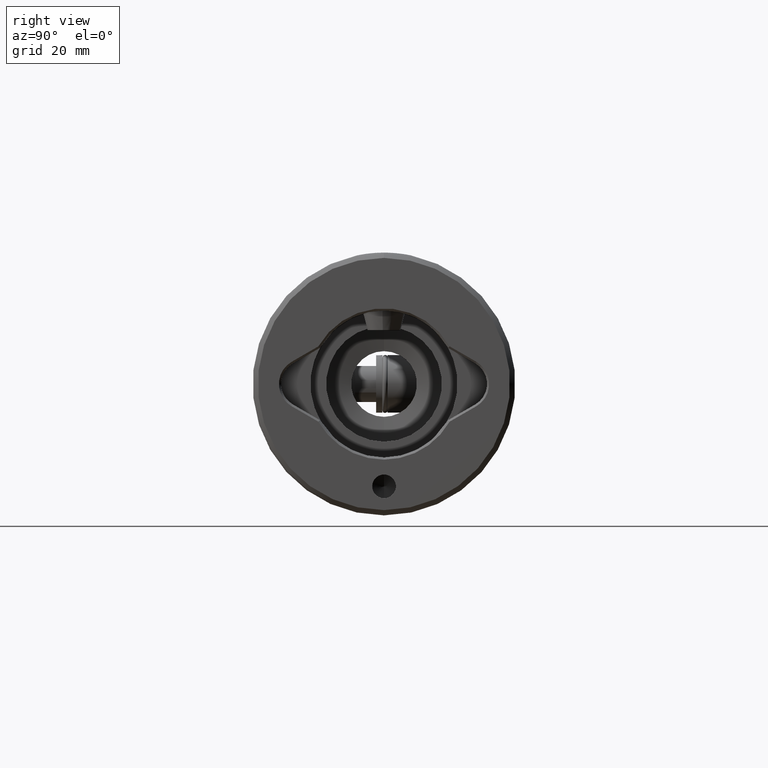
[diagram: clean part render]
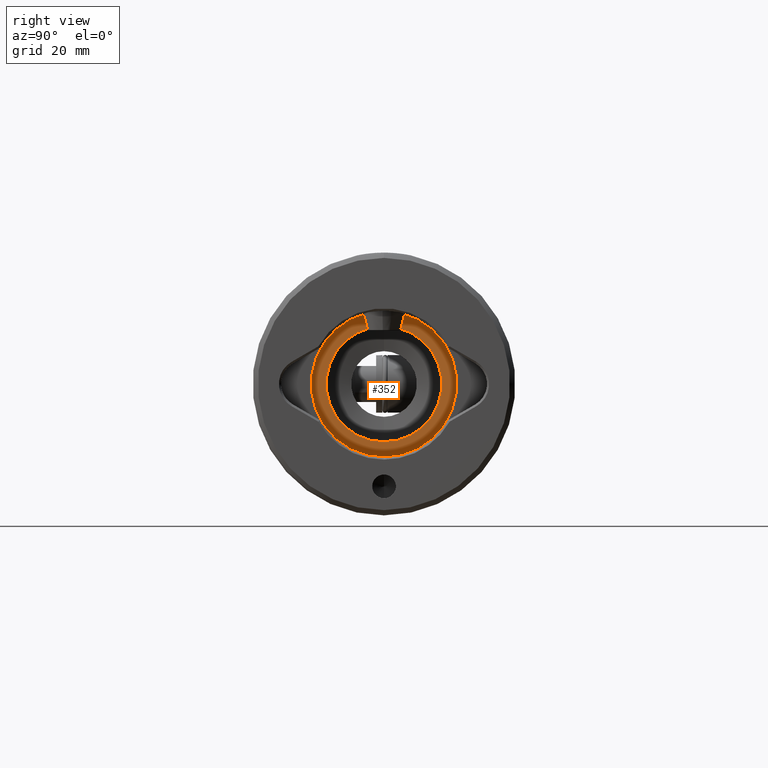
[diagram: same view with one face highlighted and labeled with its STEP entity id]
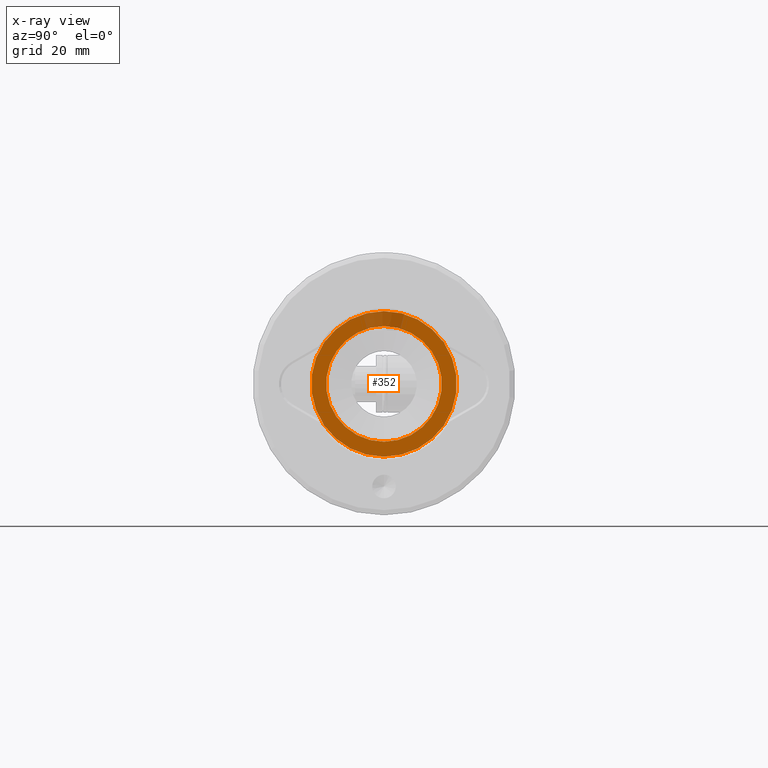
[diagram: x-ray of the same camera — body ghosted, the highlighted face saturated]
A machine part, right view. The second image highlights one B-rep face of the part: STEP entity #352.
The next image is the same camera in x-ray: the body ghosted, the highlighted face saturated — about 9% of this face is hidden behind the body in this view.
In plain terms, the highlighted planar face has unit normal (1, 0, -0).
Its self-contained STEP definition (entity closure, byte-faithful):
#52 = EDGE_CURVE ( 'NONE', #475, #4232, #3347, .T. ) ;
#183 = VERTEX_POINT ( 'NONE', #334 ) ;
#334 = CARTESIAN_POINT ( 'NONE',  ( 10.99999999999998800, 1.347111479062086800E-015, 35.00000000000000000 ) ) ;
#344 = CARTESIAN_POINT ( 'NONE',  ( 0.0000000000000000000, 0.0000000000000000000, 35.00000000000000000 ) ) ;
#352 = ADVANCED_FACE ( 'NONE', ( #3804, #3739 ), #3903, .T. ) ;
#419 = CARTESIAN_POINT ( 'NONE',  ( 0.0000000000000000000, 0.0000000000000000000, 35.00000000000000000 ) ) ;
#423 = CARTESIAN_POINT ( 'NONE',  ( 0.0000000000000000000, 0.0000000000000000000, 35.00000000000000000 ) ) ;
#475 = VERTEX_POINT ( 'NONE', #2436 ) ;
#832 = DIRECTION ( 'NONE',  ( -1.000000000000000000, 0.0000000000000000000, 0.0000000000000000000 ) ) ;
#913 = EDGE_LOOP ( 'NONE', ( #1618, #3251 ) ) ;
#1122 = ORIENTED_EDGE ( 'NONE', *, *, #3158, .F. ) ;
#1617 = CARTESIAN_POINT ( 'NONE',  ( 0.0000000000000000000, 0.0000000000000000000, 35.00000000000000000 ) ) ;
#1618 = ORIENTED_EDGE ( 'NONE', *, *, #1632, .T. ) ;
#1632 = EDGE_CURVE ( 'NONE', #4232, #475, #1952, .T. ) ;
#1860 = CARTESIAN_POINT ( 'NONE',  ( 0.0000000000000000000, 0.0000000000000000000, 35.00000000000000000 ) ) ;
#1952 = CIRCLE ( 'NONE', #3463, 13.85000000000000100 ) ;
#2077 = AXIS2_PLACEMENT_3D ( 'NONE', #419, #4584, #4199 ) ;
#2320 = VERTEX_POINT ( 'NONE', #2797 ) ;
#2340 = DIRECTION ( 'NONE',  ( 0.0000000000000000000, 0.0000000000000000000, -1.000000000000000000 ) ) ;
#2436 = CARTESIAN_POINT ( 'NONE',  ( 13.85000000000000100, 1.720628752802031300E-015, 35.00000000000000000 ) ) ;
#2586 = AXIS2_PLACEMENT_3D ( 'NONE', #1617, #3462, #4277 ) ;
#2645 = DIRECTION ( 'NONE',  ( -1.000000000000000000, 0.0000000000000000000, 0.0000000000000000000 ) ) ;
#2755 = CIRCLE ( 'NONE', #2077, 10.99999999999998800 ) ;
#2797 = CARTESIAN_POINT ( 'NONE',  ( -10.99999999999998800, 0.0000000000000000000, 35.00000000000000000 ) ) ;
#2926 = EDGE_LOOP ( 'NONE', ( #4304, #1122 ) ) ;
#3158 = EDGE_CURVE ( 'NONE', #183, #2320, #3832, .T. ) ;
#3251 = ORIENTED_EDGE ( 'NONE', *, *, #52, .T. ) ;
#3347 = CIRCLE ( 'NONE', #4499, 13.85000000000000100 ) ;
#3462 = DIRECTION ( 'NONE',  ( 0.0000000000000000000, 0.0000000000000000000, -1.000000000000000000 ) ) ;
#3463 = AXIS2_PLACEMENT_3D ( 'NONE', #423, #3885, #4622 ) ;
#3481 = CARTESIAN_POINT ( 'NONE',  ( -13.85000000000000100, 0.0000000000000000000, 35.00000000000000000 ) ) ;
#3739 = FACE_BOUND ( 'NONE', #2926, .T. ) ;
#3804 = FACE_OUTER_BOUND ( 'NONE', #913, .T. ) ;
#3832 = CIRCLE ( 'NONE', #4333, 10.99999999999998800 ) ;
#3885 = DIRECTION ( 'NONE',  ( 0.0000000000000000000, 0.0000000000000000000, -1.000000000000000000 ) ) ;
#3903 = PLANE ( 'NONE',  #2586 ) ;
#4199 = DIRECTION ( 'NONE',  ( -1.000000000000000000, 0.0000000000000000000, 0.0000000000000000000 ) ) ;
#4232 = VERTEX_POINT ( 'NONE', #3481 ) ;
#4277 = DIRECTION ( 'NONE',  ( -1.000000000000000000, 0.0000000000000000000, 0.0000000000000000000 ) ) ;
#4304 = ORIENTED_EDGE ( 'NONE', *, *, #4657, .F. ) ;
#4333 = AXIS2_PLACEMENT_3D ( 'NONE', #1860, #2340, #2645 ) ;
#4499 = AXIS2_PLACEMENT_3D ( 'NONE', #344, #4649, #832 ) ;
#4584 = DIRECTION ( 'NONE',  ( 0.0000000000000000000, 0.0000000000000000000, -1.000000000000000000 ) ) ;
#4622 = DIRECTION ( 'NONE',  ( -1.000000000000000000, 0.0000000000000000000, 0.0000000000000000000 ) ) ;
#4649 = DIRECTION ( 'NONE',  ( 0.0000000000000000000, 0.0000000000000000000, -1.000000000000000000 ) ) ;
#4657 = EDGE_CURVE ( 'NONE', #2320, #183, #2755, .T. ) ;